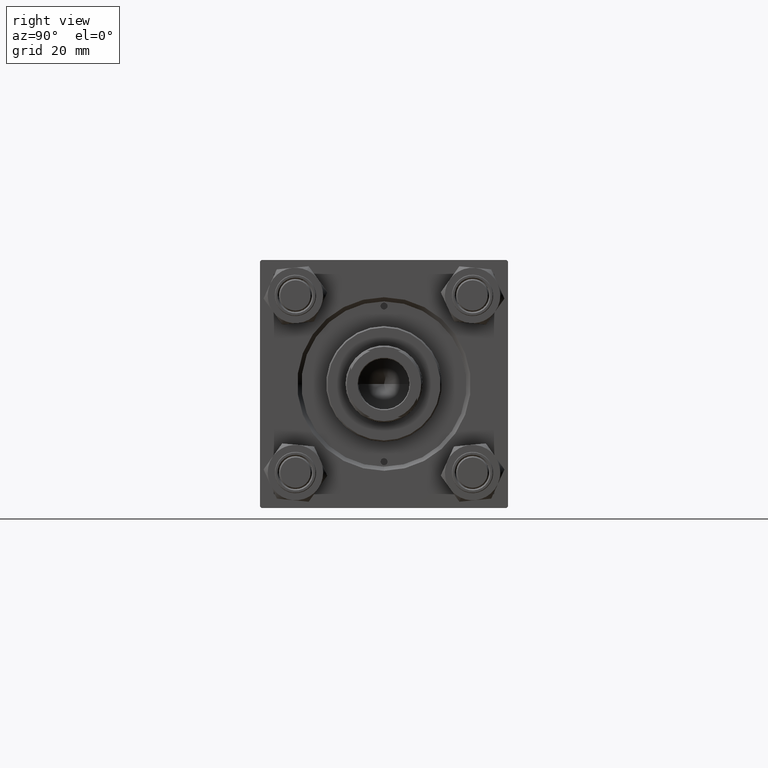
[diagram: clean part render]
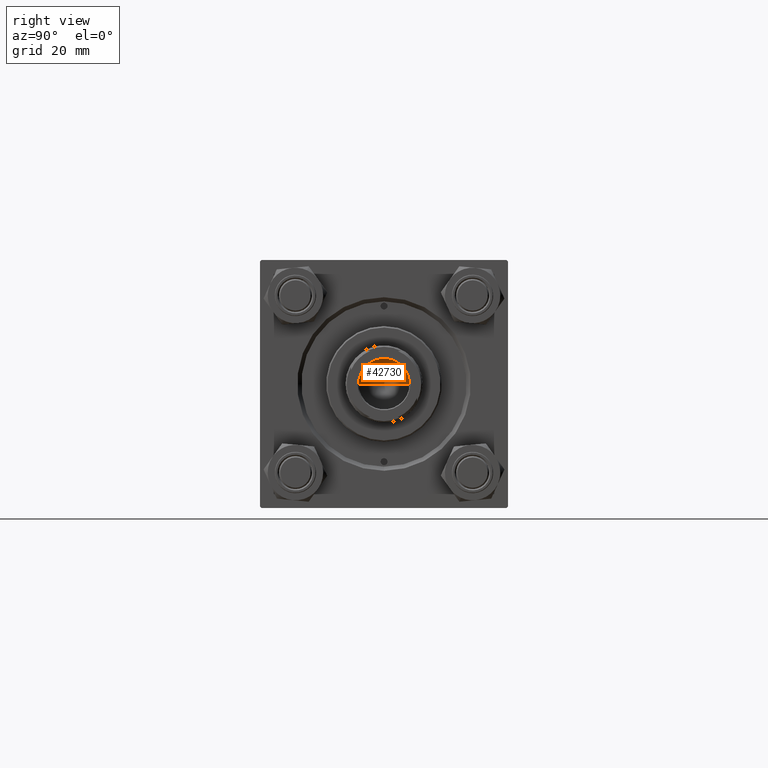
[diagram: same view with one face highlighted and labeled with its STEP entity id]
A machine part, right view. The second image highlights one B-rep face of the part: STEP entity #42730.
In plain terms, the highlighted conical surface has half-angle 59 deg.
Its self-contained STEP definition (entity closure, byte-faithful):
#1560 = CARTESIAN_POINT ( 'NONE',  ( -9.249999999999992895, 1.132798289211300712E-15, 114.9999999999999858 ) ) ;
#3138 = DIRECTION ( 'NONE',  ( 0.8571673007021117785, 0.000000000000000000, 0.5150380749100550437 ) ) ;
#3928 = VECTOR ( 'NONE', #24064, 1000.000000000000000 ) ;
#4698 = CARTESIAN_POINT ( 'NONE',  ( 0.000000000000000000, 0.000000000000000000, 114.9999999999999858 ) ) ;
#9037 = EDGE_CURVE ( 'NONE', #17744, #14062, #48284, .T. ) ;
#10784 = EDGE_CURVE ( 'NONE', #33981, #17744, #28617, .T. ) ;
#12528 = DIRECTION ( 'NONE',  ( 1.000000000000000000, 0.000000000000000000, 0.000000000000000000 ) ) ;
#14062 = VERTEX_POINT ( 'NONE', #41415 ) ;
#17357 = ORIENTED_EDGE ( 'NONE', *, *, #9037, .T. ) ;
#17744 = VERTEX_POINT ( 'NONE', #36445 ) ;
#18134 = EDGE_LOOP ( 'NONE', ( #47345, #37260, #17357 ) ) ;
#18811 = CARTESIAN_POINT ( 'NONE',  ( 9.249999999999992895, 0.000000000000000000, 114.9999999999999858 ) ) ;
#20135 = DIRECTION ( 'NONE',  ( 1.000000000000000000, 0.000000000000000000, 0.000000000000000000 ) ) ;
#21670 = VECTOR ( 'NONE', #3138, 1000.000000000000000 ) ;
#24064 = DIRECTION ( 'NONE',  ( -0.8571673007021117785, 1.049727191138617956E-16, 0.5150380749100550437 ) ) ;
#28456 = CARTESIAN_POINT ( 'NONE',  ( 0.000000000000000000, 0.000000000000000000, 114.9999999999999858 ) ) ;
#28617 = LINE ( 'NONE', #1560, #3928 ) ;
#30435 = LINE ( 'NONE', #18811, #21670 ) ;
#31368 = CONICAL_SURFACE ( 'NONE', #41873, 9.249999999999992895, 1.029744258676653423 ) ;
#33981 = VERTEX_POINT ( 'NONE', #47456 ) ;
#35323 = AXIS2_PLACEMENT_3D ( 'NONE', #4698, #39328, #20135 ) ;
#35775 = FACE_OUTER_BOUND ( 'NONE', #18134, .T. ) ;
#36445 = CARTESIAN_POINT ( 'NONE',  ( -9.249999999999992895, 1.132798289211300712E-15, 114.9999999999999858 ) ) ;
#37260 = ORIENTED_EDGE ( 'NONE', *, *, #10784, .T. ) ;
#37337 = EDGE_CURVE ( 'NONE', #33981, #14062, #30435, .T. ) ;
#39328 = DIRECTION ( 'NONE',  ( -0.000000000000000000, -0.000000000000000000, 1.000000000000000000 ) ) ;
#41415 = CARTESIAN_POINT ( 'NONE',  ( 9.249999999999992895, 0.000000000000000000, 114.9999999999999858 ) ) ;
#41873 = AXIS2_PLACEMENT_3D ( 'NONE', #28456, #46912, #12528 ) ;
#42730 = ADVANCED_FACE ( 'NONE', ( #35775 ), #31368, .F. ) ;
#46912 = DIRECTION ( 'NONE',  ( -0.000000000000000000, -0.000000000000000000, 1.000000000000000000 ) ) ;
#47345 = ORIENTED_EDGE ( 'NONE', *, *, #37337, .F. ) ;
#47456 = CARTESIAN_POINT ( 'NONE',  ( -9.769621978240258809E-15, 0.000000000000000000, 109.4420392739950501 ) ) ;
#48284 = CIRCLE ( 'NONE', #35323, 9.249999999999992895 ) ;